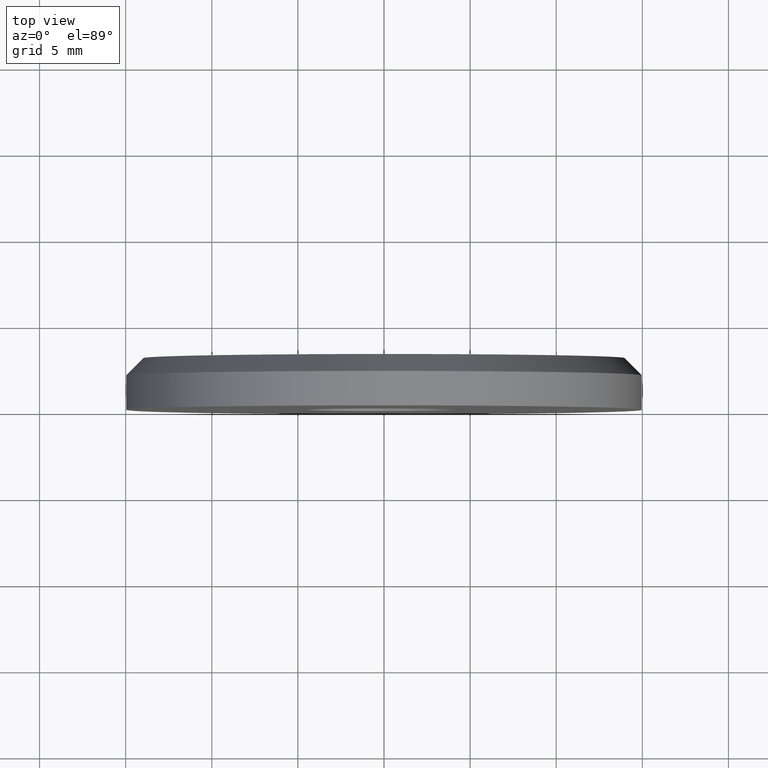
[diagram: clean part render]
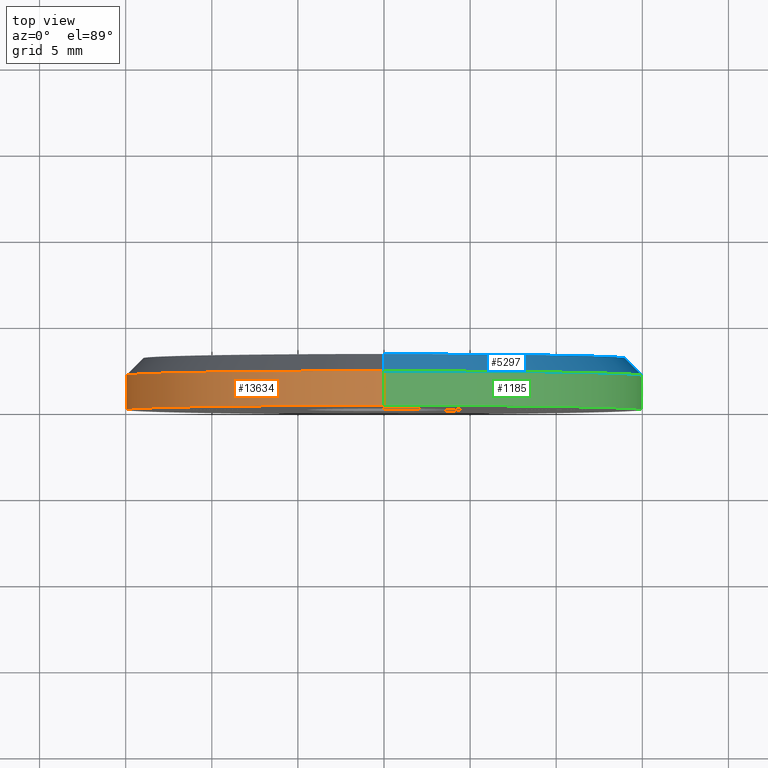
[diagram: same view with three faces highlighted in distinct colors, each labeled with its STEP entity id]
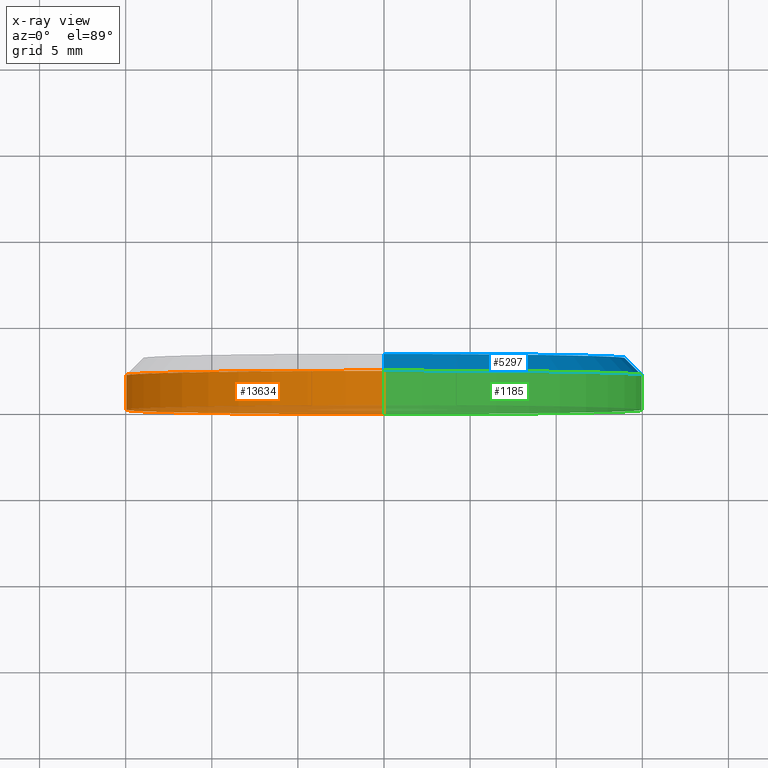
[diagram: x-ray of the same camera — body ghosted, the three highlighted faces saturated]
A machine part, top view with three faces highlighted in distinct colors.
The next image is the same camera in x-ray (body ghosted, the three faces saturated) — at least one of them is partly hidden behind the body in this view.
Their STEP definitions:

[orange] entity #13634 — the highlighted cylindrical surface (partial cylindrical patch) has radius 15 mm, axis along (-0, -1, -0).
#235 = LINE ( 'NONE', #10001, #12158 ) ;
#273 = ORIENTED_EDGE ( 'NONE', *, *, #3436, .T. ) ;
#664 = LINE ( 'NONE', #12289, #12593 ) ;
#801 = DIRECTION ( 'NONE',  ( -0.000000000000000000, -1.000000000000000000, -0.000000000000000000 ) ) ;
#1331 = AXIS2_PLACEMENT_3D ( 'NONE', #8814, #801, #5486 ) ;
#2052 = CARTESIAN_POINT ( 'NONE',  ( 1.836970198721029589E-15, 0.000000000000000000, 15.00000000000000000 ) ) ;
#3436 = EDGE_CURVE ( 'NONE', #4631, #3650, #10077, .T. ) ;
#3441 = CARTESIAN_POINT ( 'NONE',  ( 0.000000000000000000, 0.000000000000000000, 0.000000000000000000 ) ) ;
#3650 = VERTEX_POINT ( 'NONE', #2052 ) ;
#4017 = FACE_OUTER_BOUND ( 'NONE', #8888, .T. ) ;
#4385 = CYLINDRICAL_SURFACE ( 'NONE', #1331, 15.00000000000000000 ) ;
#4631 = VERTEX_POINT ( 'NONE', #9902 ) ;
#5105 = DIRECTION ( 'NONE',  ( 0.000000000000000000, -1.000000000000000000, 0.000000000000000000 ) ) ;
#5486 = DIRECTION ( 'NONE',  ( 0.000000000000000000, 0.000000000000000000, -1.000000000000000000 ) ) ;
#6026 = AXIS2_PLACEMENT_3D ( 'NONE', #3441, #9261, #15012 ) ;
#7766 = EDGE_CURVE ( 'NONE', #7798, #4631, #664, .T. ) ;
#7798 = VERTEX_POINT ( 'NONE', #12583 ) ;
#7975 = DIRECTION ( 'NONE',  ( -0.000000000000000000, -1.000000000000000000, -0.000000000000000000 ) ) ;
#8814 = CARTESIAN_POINT ( 'NONE',  ( 0.000000000000000000, 3.000000000000000000, 0.000000000000000000 ) ) ;
#8888 = EDGE_LOOP ( 'NONE', ( #12986, #9210, #14104, #273 ) ) ;
#9210 = ORIENTED_EDGE ( 'NONE', *, *, #12660, .T. ) ;
#9261 = DIRECTION ( 'NONE',  ( 0.000000000000000000, 1.000000000000000000, 0.000000000000000000 ) ) ;
#9902 = CARTESIAN_POINT ( 'NONE',  ( 0.000000000000000000, 0.000000000000000000, -15.00000000000000000 ) ) ;
#10001 = CARTESIAN_POINT ( 'NONE',  ( 1.836970198721029589E-15, 3.000000000000000000, 15.00000000000000000 ) ) ;
#10077 = CIRCLE ( 'NONE', #6026, 15.00000000000000000 ) ;
#10848 = CARTESIAN_POINT ( 'NONE',  ( 0.000000000000000000, 1.999999999999999112, 0.000000000000000000 ) ) ;
#11492 = EDGE_CURVE ( 'NONE', #12858, #3650, #235, .T. ) ;
#12158 = VECTOR ( 'NONE', #7975, 1000.000000000000000 ) ;
#12289 = CARTESIAN_POINT ( 'NONE',  ( 0.000000000000000000, 3.000000000000000000, -15.00000000000000000 ) ) ;
#12583 = CARTESIAN_POINT ( 'NONE',  ( 0.000000000000000000, 1.999999999999999112, -15.00000000000000000 ) ) ;
#12593 = VECTOR ( 'NONE', #14639, 1000.000000000000000 ) ;
#12660 = EDGE_CURVE ( 'NONE', #12858, #7798, #14158, .T. ) ;
#12858 = VERTEX_POINT ( 'NONE', #14998 ) ;
#12910 = AXIS2_PLACEMENT_3D ( 'NONE', #10848, #5105, #13168 ) ;
#12986 = ORIENTED_EDGE ( 'NONE', *, *, #11492, .F. ) ;
#13168 = DIRECTION ( 'NONE',  ( 0.000000000000000000, 0.000000000000000000, 1.000000000000000000 ) ) ;
#13634 = ADVANCED_FACE ( 'NONE', ( #4017 ), #4385, .T. ) ;
#14104 = ORIENTED_EDGE ( 'NONE', *, *, #7766, .T. ) ;
#14158 = CIRCLE ( 'NONE', #12910, 15.00000000000000000 ) ;
#14639 = DIRECTION ( 'NONE',  ( -0.000000000000000000, -1.000000000000000000, -0.000000000000000000 ) ) ;
#14998 = CARTESIAN_POINT ( 'NONE',  ( 1.836970198721029589E-15, 1.999999999999999112, 15.00000000000000000 ) ) ;
#15012 = DIRECTION ( 'NONE',  ( 0.000000000000000000, 0.000000000000000000, 1.000000000000000000 ) ) ;

[blue] entity #5297 — the highlighted conical surface has half-angle 45 deg.
#200 = DIRECTION ( 'NONE',  ( 0.000000000000000000, 1.000000000000000000, 0.000000000000000000 ) ) ;
#209 = EDGE_LOOP ( 'NONE', ( #13229, #7315, #7670, #756 ) ) ;
#618 = DIRECTION ( 'NONE',  ( 0.000000000000000000, 0.000000000000000000, 1.000000000000000000 ) ) ;
#756 = ORIENTED_EDGE ( 'NONE', *, *, #11158, .F. ) ;
#1369 = EDGE_CURVE ( 'NONE', #4020, #12858, #1946, .T. ) ;
#1430 = CARTESIAN_POINT ( 'NONE',  ( 0.000000000000000000, 3.000000000000000000, -13.99999999999999645 ) ) ;
#1946 = LINE ( 'NONE', #9973, #14613 ) ;
#2235 = VECTOR ( 'NONE', #6287, 999.9999999999998863 ) ;
#2623 = AXIS2_PLACEMENT_3D ( 'NONE', #2760, #9795, #7465 ) ;
#2760 = CARTESIAN_POINT ( 'NONE',  ( 0.000000000000000000, 3.000000000000000000, 0.000000000000000000 ) ) ;
#3036 = DIRECTION ( 'NONE',  ( 8.659560562354941486E-17, -0.7071067811865469066, 0.7071067811865482389 ) ) ;
#3429 = AXIS2_PLACEMENT_3D ( 'NONE', #11774, #200, #8548 ) ;
#3755 = AXIS2_PLACEMENT_3D ( 'NONE', #11036, #7563, #618 ) ;
#4020 = VERTEX_POINT ( 'NONE', #5539 ) ;
#4731 = CIRCLE ( 'NONE', #3755, 15.00000000000000000 ) ;
#5297 = ADVANCED_FACE ( 'NONE', ( #6625 ), #8978, .T. ) ;
#5539 = CARTESIAN_POINT ( 'NONE',  ( 1.775737858763662015E-15, 3.000000000000000000, 13.99999999999999645 ) ) ;
#5871 = LINE ( 'NONE', #8719, #2235 ) ;
#6287 = DIRECTION ( 'NONE',  ( 0.000000000000000000, -0.7071067811865469066, -0.7071067811865482389 ) ) ;
#6625 = FACE_OUTER_BOUND ( 'NONE', #209, .T. ) ;
#7315 = ORIENTED_EDGE ( 'NONE', *, *, #1369, .T. ) ;
#7465 = DIRECTION ( 'NONE',  ( 0.000000000000000000, 0.000000000000000000, -1.000000000000000000 ) ) ;
#7563 = DIRECTION ( 'NONE',  ( 0.000000000000000000, -1.000000000000000000, 0.000000000000000000 ) ) ;
#7670 = ORIENTED_EDGE ( 'NONE', *, *, #14738, .F. ) ;
#7798 = VERTEX_POINT ( 'NONE', #12583 ) ;
#8273 = CIRCLE ( 'NONE', #3429, 13.99999999999999645 ) ;
#8371 = EDGE_CURVE ( 'NONE', #4020, #12264, #8273, .T. ) ;
#8548 = DIRECTION ( 'NONE',  ( 0.000000000000000000, 0.000000000000000000, 1.000000000000000000 ) ) ;
#8719 = CARTESIAN_POINT ( 'NONE',  ( 0.000000000000000000, 3.000000000000000000, -13.99999999999999645 ) ) ;
#8978 = CONICAL_SURFACE ( 'NONE', #2623, 13.99999999999999645, 0.7853981633974491672 ) ;
#9795 = DIRECTION ( 'NONE',  ( 0.000000000000000000, -1.000000000000000000, 0.000000000000000000 ) ) ;
#9973 = CARTESIAN_POINT ( 'NONE',  ( 1.714505518806294244E-15, 3.000000000000000000, 13.99999999999999645 ) ) ;
#11036 = CARTESIAN_POINT ( 'NONE',  ( 0.000000000000000000, 1.999999999999999112, 0.000000000000000000 ) ) ;
#11158 = EDGE_CURVE ( 'NONE', #12264, #7798, #5871, .T. ) ;
#11774 = CARTESIAN_POINT ( 'NONE',  ( 0.000000000000000000, 3.000000000000000000, 0.000000000000000000 ) ) ;
#12264 = VERTEX_POINT ( 'NONE', #1430 ) ;
#12583 = CARTESIAN_POINT ( 'NONE',  ( 0.000000000000000000, 1.999999999999999112, -15.00000000000000000 ) ) ;
#12858 = VERTEX_POINT ( 'NONE', #14998 ) ;
#13229 = ORIENTED_EDGE ( 'NONE', *, *, #8371, .F. ) ;
#14613 = VECTOR ( 'NONE', #3036, 999.9999999999998863 ) ;
#14738 = EDGE_CURVE ( 'NONE', #7798, #12858, #4731, .T. ) ;
#14998 = CARTESIAN_POINT ( 'NONE',  ( 1.836970198721029589E-15, 1.999999999999999112, 15.00000000000000000 ) ) ;

[green] entity #1185 — the highlighted cylindrical surface (partial cylindrical patch) has radius 15 mm, axis along (-0, -1, -0).
#235 = LINE ( 'NONE', #10001, #12158 ) ;
#618 = DIRECTION ( 'NONE',  ( 0.000000000000000000, 0.000000000000000000, 1.000000000000000000 ) ) ;
#664 = LINE ( 'NONE', #12289, #12593 ) ;
#760 = DIRECTION ( 'NONE',  ( 0.000000000000000000, 0.000000000000000000, -1.000000000000000000 ) ) ;
#961 = CARTESIAN_POINT ( 'NONE',  ( 0.000000000000000000, 3.000000000000000000, 0.000000000000000000 ) ) ;
#1185 = ADVANCED_FACE ( 'NONE', ( #3205 ), #8460, .T. ) ;
#2052 = CARTESIAN_POINT ( 'NONE',  ( 1.836970198721029589E-15, 0.000000000000000000, 15.00000000000000000 ) ) ;
#2881 = DIRECTION ( 'NONE',  ( 0.000000000000000000, 1.000000000000000000, 0.000000000000000000 ) ) ;
#2916 = CIRCLE ( 'NONE', #4734, 15.00000000000000000 ) ;
#3205 = FACE_OUTER_BOUND ( 'NONE', #6899, .T. ) ;
#3650 = VERTEX_POINT ( 'NONE', #2052 ) ;
#3755 = AXIS2_PLACEMENT_3D ( 'NONE', #11036, #7563, #618 ) ;
#4631 = VERTEX_POINT ( 'NONE', #9902 ) ;
#4731 = CIRCLE ( 'NONE', #3755, 15.00000000000000000 ) ;
#4734 = AXIS2_PLACEMENT_3D ( 'NONE', #14420, #2881, #14469 ) ;
#4888 = ORIENTED_EDGE ( 'NONE', *, *, #11492, .T. ) ;
#6899 = EDGE_LOOP ( 'NONE', ( #7981, #4888, #10592, #8695 ) ) ;
#7563 = DIRECTION ( 'NONE',  ( 0.000000000000000000, -1.000000000000000000, 0.000000000000000000 ) ) ;
#7766 = EDGE_CURVE ( 'NONE', #7798, #4631, #664, .T. ) ;
#7798 = VERTEX_POINT ( 'NONE', #12583 ) ;
#7975 = DIRECTION ( 'NONE',  ( -0.000000000000000000, -1.000000000000000000, -0.000000000000000000 ) ) ;
#7981 = ORIENTED_EDGE ( 'NONE', *, *, #14738, .T. ) ;
#8460 = CYLINDRICAL_SURFACE ( 'NONE', #12276, 15.00000000000000000 ) ;
#8695 = ORIENTED_EDGE ( 'NONE', *, *, #7766, .F. ) ;
#9902 = CARTESIAN_POINT ( 'NONE',  ( 0.000000000000000000, 0.000000000000000000, -15.00000000000000000 ) ) ;
#10001 = CARTESIAN_POINT ( 'NONE',  ( 1.836970198721029589E-15, 3.000000000000000000, 15.00000000000000000 ) ) ;
#10592 = ORIENTED_EDGE ( 'NONE', *, *, #13471, .T. ) ;
#11036 = CARTESIAN_POINT ( 'NONE',  ( 0.000000000000000000, 1.999999999999999112, 0.000000000000000000 ) ) ;
#11492 = EDGE_CURVE ( 'NONE', #12858, #3650, #235, .T. ) ;
#12158 = VECTOR ( 'NONE', #7975, 1000.000000000000000 ) ;
#12276 = AXIS2_PLACEMENT_3D ( 'NONE', #961, #12279, #760 ) ;
#12279 = DIRECTION ( 'NONE',  ( -0.000000000000000000, -1.000000000000000000, -0.000000000000000000 ) ) ;
#12289 = CARTESIAN_POINT ( 'NONE',  ( 0.000000000000000000, 3.000000000000000000, -15.00000000000000000 ) ) ;
#12583 = CARTESIAN_POINT ( 'NONE',  ( 0.000000000000000000, 1.999999999999999112, -15.00000000000000000 ) ) ;
#12593 = VECTOR ( 'NONE', #14639, 1000.000000000000000 ) ;
#12858 = VERTEX_POINT ( 'NONE', #14998 ) ;
#13471 = EDGE_CURVE ( 'NONE', #3650, #4631, #2916, .T. ) ;
#14420 = CARTESIAN_POINT ( 'NONE',  ( 0.000000000000000000, 0.000000000000000000, 0.000000000000000000 ) ) ;
#14469 = DIRECTION ( 'NONE',  ( 0.000000000000000000, 0.000000000000000000, 1.000000000000000000 ) ) ;
#14639 = DIRECTION ( 'NONE',  ( -0.000000000000000000, -1.000000000000000000, -0.000000000000000000 ) ) ;
#14738 = EDGE_CURVE ( 'NONE', #7798, #12858, #4731, .T. ) ;
#14998 = CARTESIAN_POINT ( 'NONE',  ( 1.836970198721029589E-15, 1.999999999999999112, 15.00000000000000000 ) ) ;